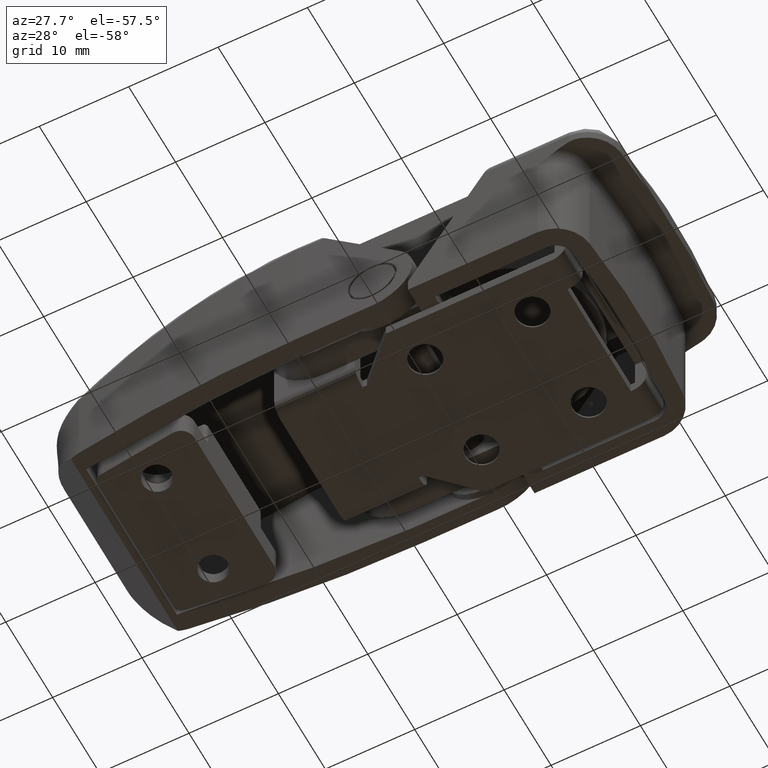
[diagram: clean part render]
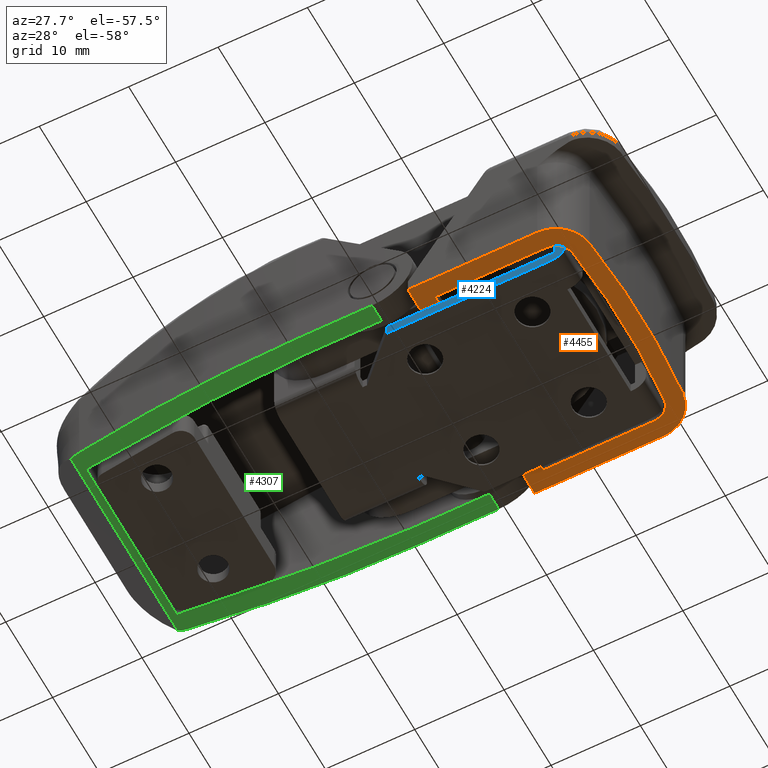
[diagram: same view with three faces highlighted in distinct colors, each labeled with its STEP entity id]
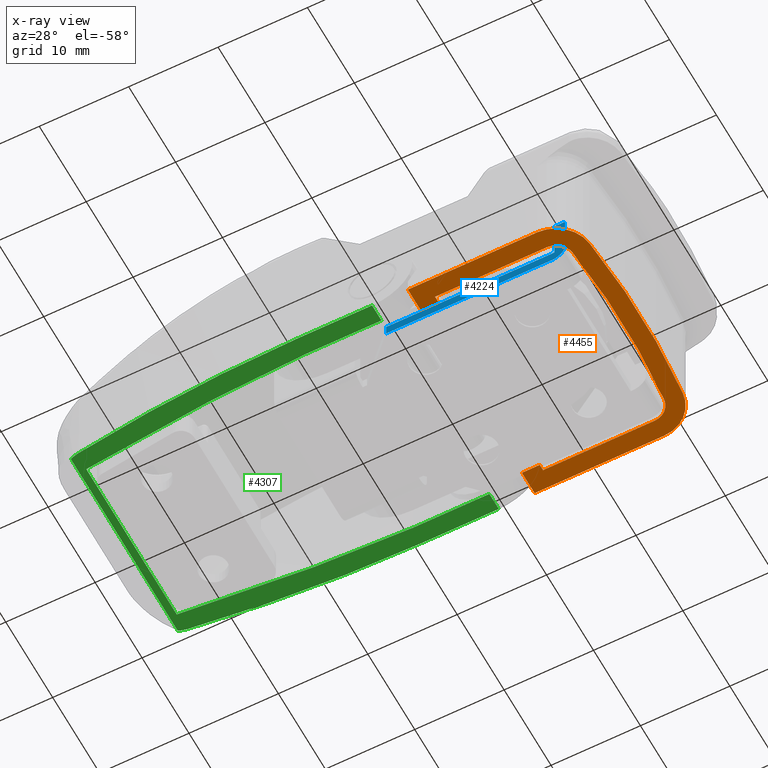
[diagram: x-ray of the same camera — body ghosted, the three highlighted faces saturated]
A machine part, auxiliary view with three faces highlighted in distinct colors.
The next image is the same camera in x-ray (body ghosted, the three faces saturated) — at least one of them is partly hidden behind the body in this view.
Their STEP definitions:

[orange] entity #4455 — the highlighted planar face has unit normal (-0, -0, -1).
#395=PLANE('',#4896);
#644=FACE_OUTER_BOUND('',#961,.T.);
#961=EDGE_LOOP('',(#4060,#4061,#4062,#4063,#4064,#4065,#4066,#4067,#4068,
#4069,#4070,#4071,#4072,#4073,#4074,#4075));
#1235=LINE('',#8911,#1566);
#1269=LINE('',#8996,#1600);
#1274=LINE('',#9006,#1605);
#1280=LINE('',#9017,#1611);
#1281=LINE('',#9019,#1612);
#1282=LINE('',#9022,#1613);
#1287=LINE('',#9038,#1618);
#1289=LINE('',#9041,#1620);
#1306=LINE('',#9285,#1637);
#1307=LINE('',#9290,#1638);
#1566=VECTOR('',#5862,0.700000000000001);
#1600=VECTOR('',#5946,2.7);
#1605=VECTOR('',#5953,2.7);
#1611=VECTOR('',#5963,2.);
#1612=VECTOR('',#5966,2.00000000000001);
#1613=VECTOR('',#5969,12.4834991547897);
#1618=VECTOR('',#5988,12.4834991547897);
#1620=VECTOR('',#5992,0.700000000000001);
#1637=VECTOR('',#6091,14.4834991547897);
#1638=VECTOR('',#6096,14.4834991547897);
#1807=CIRCLE('',#4849,2.);
#1808=CIRCLE('',#4851,89.6249999999999);
#1809=CIRCLE('',#4853,2.);
#1827=CIRCLE('',#4895,4.);
#1828=CIRCLE('',#4897,91.6249999999999);
#1829=CIRCLE('',#4898,4.);
#2172=VERTEX_POINT('',#8908);
#2173=VERTEX_POINT('',#8910);
#2198=VERTEX_POINT('',#8993);
#2199=VERTEX_POINT('',#8995);
#2202=VERTEX_POINT('',#9003);
#2203=VERTEX_POINT('',#9005);
#2206=VERTEX_POINT('',#9015);
#2207=VERTEX_POINT('',#9021);
#2208=VERTEX_POINT('',#9025);
#2209=VERTEX_POINT('',#9029);
#2210=VERTEX_POINT('',#9033);
#2211=VERTEX_POINT('',#9037);
#2242=VERTEX_POINT('',#9279);
#2243=VERTEX_POINT('',#9281);
#2244=VERTEX_POINT('',#9286);
#2245=VERTEX_POINT('',#9288);
#2746=EDGE_CURVE('',#2173,#2172,#1235,.T.);
#2788=EDGE_CURVE('',#2198,#2199,#1269,.T.);
#2793=EDGE_CURVE('',#2202,#2203,#1274,.T.);
#2799=EDGE_CURVE('',#2202,#2206,#1280,.T.);
#2800=EDGE_CURVE('',#2172,#2199,#1281,.T.);
#2801=EDGE_CURVE('',#2207,#2173,#1282,.T.);
#2803=EDGE_CURVE('',#2208,#2207,#1807,.T.);
#2805=EDGE_CURVE('',#2209,#2208,#1808,.T.);
#2807=EDGE_CURVE('',#2210,#2209,#1809,.T.);
#2809=EDGE_CURVE('',#2211,#2210,#1287,.T.);
#2811=EDGE_CURVE('',#2206,#2211,#1289,.T.);
#2861=EDGE_CURVE('',#2242,#2243,#1827,.T.);
#2863=EDGE_CURVE('',#2198,#2243,#1306,.T.);
#2864=EDGE_CURVE('',#2242,#2244,#1828,.T.);
#2865=EDGE_CURVE('',#2245,#2244,#1829,.T.);
#2866=EDGE_CURVE('',#2245,#2203,#1307,.T.);
#4060=ORIENTED_EDGE('',*,*,#2800,.T.);
#4061=ORIENTED_EDGE('',*,*,#2788,.F.);
#4062=ORIENTED_EDGE('',*,*,#2863,.T.);
#4063=ORIENTED_EDGE('',*,*,#2861,.F.);
#4064=ORIENTED_EDGE('',*,*,#2864,.T.);
#4065=ORIENTED_EDGE('',*,*,#2865,.F.);
#4066=ORIENTED_EDGE('',*,*,#2866,.T.);
#4067=ORIENTED_EDGE('',*,*,#2793,.F.);
#4068=ORIENTED_EDGE('',*,*,#2799,.T.);
#4069=ORIENTED_EDGE('',*,*,#2811,.T.);
#4070=ORIENTED_EDGE('',*,*,#2809,.T.);
#4071=ORIENTED_EDGE('',*,*,#2807,.T.);
#4072=ORIENTED_EDGE('',*,*,#2805,.T.);
#4073=ORIENTED_EDGE('',*,*,#2803,.T.);
#4074=ORIENTED_EDGE('',*,*,#2801,.T.);
#4075=ORIENTED_EDGE('',*,*,#2746,.T.);
#4455=ADVANCED_FACE('',(#644),#395,.T.);
#4849=AXIS2_PLACEMENT_3D('',#9026,#5973,#5974);
#4851=AXIS2_PLACEMENT_3D('',#9030,#5978,#5979);
#4853=AXIS2_PLACEMENT_3D('',#9034,#5983,#5984);
#4895=AXIS2_PLACEMENT_3D('',#9282,#6086,#6087);
#4896=AXIS2_PLACEMENT_3D('',#9284,#6089,#6090);
#4897=AXIS2_PLACEMENT_3D('',#9287,#6092,#6093);
#4898=AXIS2_PLACEMENT_3D('',#9289,#6094,#6095);
#5862=DIRECTION('',(0.,0.,1.));
#5946=DIRECTION('',(0.,0.,1.));
#5953=DIRECTION('',(0.,0.,1.));
#5963=DIRECTION('',(1.,1.1686558153949E-16,0.));
#5966=DIRECTION('',(-1.,-1.1686558153949E-16,-5.55111512312577E-16));
#5969=DIRECTION('',(-1.,-1.1686558153949E-16,-1.33402863755454E-16));
#5973=DIRECTION('center_axis',(-1.1686558153949E-16,1.,0.));
#5974=DIRECTION('ref_axis',(0.,0.,-1.));
#5978=DIRECTION('center_axis',(-1.1686558153949E-16,1.,0.));
#5979=DIRECTION('ref_axis',(0.994105553834975,1.16176723660561E-16,-0.108416547788873));
#5983=DIRECTION('center_axis',(-1.1686558153949E-16,1.,0.));
#5984=DIRECTION('ref_axis',(0.994105553834975,1.16176723660561E-16,0.108416547788875));
#5988=DIRECTION('',(1.,1.1686558153949E-16,3.55740970014543E-16));
#5992=DIRECTION('',(-3.96508223080416E-16,-4.63381640754828E-32,1.));
#6086=DIRECTION('center_axis',(-1.1686558153949E-16,1.,0.));
#6087=DIRECTION('ref_axis',(0.667676363297041,7.80283864768805E-17,-0.744451659877549));
#6089=DIRECTION('center_axis',(1.1686558153949E-16,-1.,0.));
#6090=DIRECTION('ref_axis',(0.,0.,-1.));
#6091=DIRECTION('',(1.,1.1686558153949E-16,0.));
#6092=DIRECTION('center_axis',(1.1686558153949E-16,-1.,0.));
#6093=DIRECTION('ref_axis',(-0.989085948158254,-1.15590104524052E-16,0.147339699863574));
#6094=DIRECTION('center_axis',(-1.1686558153949E-16,1.,0.));
#6095=DIRECTION('ref_axis',(0.667676363297039,7.80283864768803E-17,0.744451659877551));
#6096=DIRECTION('',(-1.,-1.1686558153949E-16,0.));
#8908=CARTESIAN_POINT('',(-2.99999999999999,2.33731163078981E-16,-10.8));
#8910=CARTESIAN_POINT('',(-2.99999999999999,2.33731163078981E-16,-11.5));
#8911=CARTESIAN_POINT('',(-2.99999999999999,2.33731163078981E-16,-5.4));
#8993=CARTESIAN_POINT('',(-5.,0.,-13.5));
#8995=CARTESIAN_POINT('',(-5.,-2.46519032881566E-31,-10.8));
#8996=CARTESIAN_POINT('',(-5.,0.,0.));
#9003=CARTESIAN_POINT('',(-5.,-2.46519032881566E-31,10.8));
#9005=CARTESIAN_POINT('',(-5.,0.,13.5));
#9006=CARTESIAN_POINT('',(-5.,0.,0.));
#9015=CARTESIAN_POINT('',(-3.,2.3373116307898E-16,10.8));
#9017=CARTESIAN_POINT('',(5.5,1.22708860616465E-15,10.8));
#9019=CARTESIAN_POINT('',(4.5,1.11022302462516E-15,-10.8));
#9021=CARTESIAN_POINT('',(9.48349915478972,1.69262255145121E-15,-11.5));
#9022=CARTESIAN_POINT('',(5.5,1.22708860616465E-15,-11.5));
#9025=CARTESIAN_POINT('',(11.4717102624596,1.92497599877233E-15,-9.71683309557775));
#9026=CARTESIAN_POINT('Origin',(9.48349915478972,2.22044604925031E-15,-9.50000000000001));
#9029=CARTESIAN_POINT('',(11.4717102624596,1.92497599877233E-15,9.71683309557774));
#9030=CARTESIAN_POINT('Origin',(-77.6249999999999,2.22044604925031E-15,
0.));
#9033=CARTESIAN_POINT('',(9.48349915478974,1.69262255145122E-15,11.5));
#9034=CARTESIAN_POINT('Origin',(9.48349915478974,2.22044604925031E-15,9.5));
#9037=CARTESIAN_POINT('',(-3.,2.3373116307898E-16,11.5));
#9038=CARTESIAN_POINT('',(11.7417495773949,1.95653430035076E-15,11.5));
#9041=CARTESIAN_POINT('',(-3.,2.3373116307898E-16,5.74999999999999));
#9279=CARTESIAN_POINT('',(13.4599213701296,3.31357172260418E-15,-9.9336661911555));
#9281=CARTESIAN_POINT('',(9.48349915478972,1.69262255145122E-15,-13.5));
#9282=CARTESIAN_POINT('Origin',(9.48349915478972,1.74961757703516E-15,-9.50000000000001));
#9284=CARTESIAN_POINT('Origin',(14.,2.22044604925031E-15,0.));
#9285=CARTESIAN_POINT('',(-5.,0.,-13.5));
#9286=CARTESIAN_POINT('',(13.4599213701296,3.31357172260418E-15,9.93366619115548));
#9287=CARTESIAN_POINT('Origin',(-77.6249999999999,-7.33112058279474E-15,
0.));
#9288=CARTESIAN_POINT('',(9.48349915478974,1.69262255145122E-15,13.5));
#9289=CARTESIAN_POINT('Origin',(9.48349915478974,1.74961757703516E-15,9.49999999999999));
#9290=CARTESIAN_POINT('',(-5.,0.,13.5));

[blue] entity #4224 — the highlighted planar face has unit normal (0, -1, 0).
#294=PLANE('',#4504);
#413=FACE_OUTER_BOUND('',#678,.T.);
#678=EDGE_LOOP('',(#2966,#2967,#2968,#2969,#2970,#2971,#2972));
#992=LINE('',#6177,#1323);
#993=LINE('',#6181,#1324);
#1017=LINE('',#6233,#1348);
#1019=LINE('',#6246,#1350);
#1033=LINE('',#6285,#1364);
#1034=LINE('',#6286,#1365);
#1323=VECTOR('',#4945,4.8);
#1324=VECTOR('',#4950,1.2);
#1348=VECTOR('',#4990,18.8);
#1350=VECTOR('',#5002,18.5);
#1364=VECTOR('',#5034,1.2);
#1365=VECTOR('',#5035,4.5);
#1657=CIRCLE('',#4501,1.5);
#1844=VERTEX_POINT('',#6174);
#1845=VERTEX_POINT('',#6176);
#1846=VERTEX_POINT('',#6180);
#1866=VERTEX_POINT('',#6231);
#1871=VERTEX_POINT('',#6243);
#1872=VERTEX_POINT('',#6245);
#1887=VERTEX_POINT('',#6277);
#2262=EDGE_CURVE('',#1845,#1844,#992,.T.);
#2264=EDGE_CURVE('',#1845,#1846,#993,.T.);
#2291=EDGE_CURVE('',#1844,#1866,#1017,.T.);
#2297=EDGE_CURVE('',#1871,#1872,#1019,.T.);
#2314=EDGE_CURVE('',#1887,#1871,#1657,.T.);
#2317=EDGE_CURVE('',#1872,#1866,#1033,.T.);
#2318=EDGE_CURVE('',#1887,#1846,#1034,.T.);
#2966=ORIENTED_EDGE('',*,*,#2264,.F.);
#2967=ORIENTED_EDGE('',*,*,#2262,.T.);
#2968=ORIENTED_EDGE('',*,*,#2291,.T.);
#2969=ORIENTED_EDGE('',*,*,#2317,.F.);
#2970=ORIENTED_EDGE('',*,*,#2297,.F.);
#2971=ORIENTED_EDGE('',*,*,#2314,.F.);
#2972=ORIENTED_EDGE('',*,*,#2318,.T.);
#4224=ADVANCED_FACE('',(#413),#294,.T.);
#4501=AXIS2_PLACEMENT_3D('',#6279,#5025,#5026);
#4504=AXIS2_PLACEMENT_3D('',#6284,#5032,#5033);
#4945=DIRECTION('',(0.,0.,-1.));
#4950=DIRECTION('',(1.,2.22044604925031E-16,-9.25185853854296E-16));
#4990=DIRECTION('',(-1.,-2.22044604925031E-16,0.));
#5002=DIRECTION('',(-1.,-2.22044604925031E-16,0.));
#5025=DIRECTION('center_axis',(-2.22044604925031E-16,1.,0.));
#5026=DIRECTION('ref_axis',(0.707106781186546,1.57009245868377E-16,-0.707106781186549));
#5032=DIRECTION('center_axis',(2.22044604925031E-16,-1.,0.));
#5033=DIRECTION('ref_axis',(0.,0.,-1.));
#5034=DIRECTION('',(0.,0.,1.));
#5035=DIRECTION('',(0.,0.,1.));
#6174=CARTESIAN_POINT('',(28.3,-10.5,1.2));
#6176=CARTESIAN_POINT('',(28.3,-10.5,6.));
#6177=CARTESIAN_POINT('',(28.3,-10.5,7.));
#6180=CARTESIAN_POINT('',(29.5,-10.5,6.));
#6181=CARTESIAN_POINT('',(29.5,-10.5,6.));
#6231=CARTESIAN_POINT('',(9.49999999999999,-10.5,1.2));
#6233=CARTESIAN_POINT('',(29.5,-10.5,1.2));
#6243=CARTESIAN_POINT('',(28.,-10.5,0.));
#6245=CARTESIAN_POINT('',(9.49999999999999,-10.5,0.));
#6246=CARTESIAN_POINT('',(29.5,-10.5,0.));
#6277=CARTESIAN_POINT('',(29.5,-10.5,1.5));
#6279=CARTESIAN_POINT('Origin',(28.,-10.5,1.5));
#6284=CARTESIAN_POINT('Origin',(29.5,-10.5,0.));
#6285=CARTESIAN_POINT('',(9.49999999999999,-10.5,0.));
#6286=CARTESIAN_POINT('',(29.5,-10.5,0.));

[green] entity #4307 — the highlighted planar face has unit normal (0, -0, -1).
#123=B_SPLINE_CURVE_WITH_KNOTS('',3,(#7986,#7987,#7988,#7989),
 .UNSPECIFIED.,.F.,.F.,(4,4),(-1.,0.),.UNSPECIFIED.);
#124=B_SPLINE_CURVE_WITH_KNOTS('',3,(#7990,#7991,#7992,#7993),
 .UNSPECIFIED.,.F.,.F.,(4,4),(0.,1.),.UNSPECIFIED.);
#326=PLANE('',#4631);
#496=FACE_OUTER_BOUND('',#780,.T.);
#780=EDGE_LOOP('',(#3350,#3351,#3352,#3353,#3354,#3355,#3356,#3357,#3358,
#3359,#3360,#3361,#3362,#3363));
#1069=LINE('',#7734,#1400);
#1075=LINE('',#7788,#1406);
#1084=LINE('',#7823,#1415);
#1102=LINE('',#7979,#1433);
#1104=LINE('',#7983,#1435);
#1105=LINE('',#7985,#1436);
#1106=LINE('',#7995,#1437);
#1107=LINE('',#7996,#1438);
#1400=VECTOR('',#5252,8.49999999999998);
#1406=VECTOR('',#5272,22.7864321732208);
#1415=VECTOR('',#5301,19.270811686426);
#1433=VECTOR('',#5355,8.49999999999996);
#1435=VECTOR('',#5359,2.);
#1436=VECTOR('',#5360,8.49999999999996);
#1437=VECTOR('',#5361,2.);
#1438=VECTOR('',#5362,8.49999999999998);
#1699=CIRCLE('',#4583,5.);
#1701=CIRCLE('',#4587,5.);
#1705=CIRCLE('',#4593,175.299999999999);
#1711=CIRCLE('',#4605,175.3);
#1961=VERTEX_POINT('',#7573);
#1963=VERTEX_POINT('',#7577);
#1965=VERTEX_POINT('',#7640);
#1966=VERTEX_POINT('',#7641);
#1971=VERTEX_POINT('',#7726);
#1973=VERTEX_POINT('',#7732);
#1979=VERTEX_POINT('',#7792);
#1987=VERTEX_POINT('',#7820);
#1988=VERTEX_POINT('',#7822);
#2009=VERTEX_POINT('',#7976);
#2010=VERTEX_POINT('',#7978);
#2011=VERTEX_POINT('',#7982);
#2012=VERTEX_POINT('',#7984);
#2013=VERTEX_POINT('',#7994);
#2430=EDGE_CURVE('',#1963,#1961,#1699,.T.);
#2434=EDGE_CURVE('',#1965,#1966,#1701,.T.);
#2444=EDGE_CURVE('',#1963,#1971,#1705,.T.);
#2447=EDGE_CURVE('',#1971,#1973,#1069,.T.);
#2457=EDGE_CURVE('',#1965,#1961,#1075,.T.);
#2459=EDGE_CURVE('',#1979,#1966,#1711,.T.);
#2471=EDGE_CURVE('',#1988,#1987,#1084,.T.);
#2504=EDGE_CURVE('',#2010,#2009,#1102,.T.);
#2506=EDGE_CURVE('',#1973,#2011,#1104,.T.);
#2507=EDGE_CURVE('',#2011,#2012,#1105,.T.);
#2508=EDGE_CURVE('',#2012,#1988,#123,.T.);
#2509=EDGE_CURVE('',#1987,#2010,#124,.T.);
#2510=EDGE_CURVE('',#2009,#2013,#1106,.T.);
#2511=EDGE_CURVE('',#2013,#1979,#1107,.T.);
#3350=ORIENTED_EDGE('',*,*,#2430,.F.);
#3351=ORIENTED_EDGE('',*,*,#2444,.T.);
#3352=ORIENTED_EDGE('',*,*,#2447,.T.);
#3353=ORIENTED_EDGE('',*,*,#2506,.T.);
#3354=ORIENTED_EDGE('',*,*,#2507,.T.);
#3355=ORIENTED_EDGE('',*,*,#2508,.T.);
#3356=ORIENTED_EDGE('',*,*,#2471,.T.);
#3357=ORIENTED_EDGE('',*,*,#2509,.T.);
#3358=ORIENTED_EDGE('',*,*,#2504,.T.);
#3359=ORIENTED_EDGE('',*,*,#2510,.T.);
#3360=ORIENTED_EDGE('',*,*,#2511,.T.);
#3361=ORIENTED_EDGE('',*,*,#2459,.T.);
#3362=ORIENTED_EDGE('',*,*,#2434,.F.);
#3363=ORIENTED_EDGE('',*,*,#2457,.T.);
#4307=ADVANCED_FACE('',(#496),#326,.T.);
#4583=AXIS2_PLACEMENT_3D('',#7579,#5222,#5223);
#4587=AXIS2_PLACEMENT_3D('',#7642,#5230,#5231);
#4593=AXIS2_PLACEMENT_3D('',#7728,#5245,#5246);
#4605=AXIS2_PLACEMENT_3D('',#7793,#5278,#5279);
#4631=AXIS2_PLACEMENT_3D('',#7981,#5357,#5358);
#5222=DIRECTION('center_axis',(-1.1686558153949E-16,1.,0.));
#5223=DIRECTION('ref_axis',(-0.756261783319098,-8.83809731036781E-17,-0.654269145758088));
#5230=DIRECTION('center_axis',(-1.1686558153949E-16,1.,0.));
#5231=DIRECTION('ref_axis',(-0.756261783319101,-8.83809731036785E-17,0.654269145758085));
#5245=DIRECTION('center_axis',(1.1686558153949E-16,-1.,0.));
#5246=DIRECTION('ref_axis',(0.,0.,1.));
#5252=DIRECTION('',(1.,1.1686558153949E-16,0.));
#5272=DIRECTION('',(0.,0.,-1.));
#5278=DIRECTION('center_axis',(1.1686558153949E-16,-1.,0.));
#5279=DIRECTION('ref_axis',(0.168282943525385,1.96664840582713E-17,-0.985738733599544));
#5301=DIRECTION('',(-3.09315533174417E-17,-3.61483396636257E-33,1.));
#5355=DIRECTION('',(1.,1.1686558153949E-16,3.02468059712863E-16));
#5357=DIRECTION('center_axis',(1.1686558153949E-16,-1.,0.));
#5358=DIRECTION('ref_axis',(0.,0.,-1.));
#5359=DIRECTION('',(0.,0.,1.));
#5360=DIRECTION('',(-1.,-1.1686558153949E-16,3.02468059712863E-16));
#5361=DIRECTION('',(0.,0.,1.));
#5362=DIRECTION('',(-1.,-1.1686558153949E-16,0.));
#7573=CARTESIAN_POINT('',(-34.8,-4.5,-11.3932160866104));
#7577=CARTESIAN_POINT('',(-33.7193188490899,-4.50000000000001,-11.6764420801508));
#7579=CARTESIAN_POINT('Origin',(-33.,-4.50000000000001,-6.72845457073411));
#7640=CARTESIAN_POINT('',(-34.8,-4.5,11.3932160866104));
#7641=CARTESIAN_POINT('',(-33.7193188490899,-4.50000000000001,11.6764420801509));
#7642=CARTESIAN_POINT('Origin',(-33.,-4.50000000000001,6.72845457073414));
#7726=CARTESIAN_POINT('',(-8.49999999999998,-4.5,-13.5));
#7728=CARTESIAN_POINT('Origin',(-8.49999999999998,-4.5,161.799999999999));
#7732=CARTESIAN_POINT('',(5.51091059616309E-16,-4.5,-13.5));
#7734=CARTESIAN_POINT('',(5.51091059616309E-16,-4.5,-13.5));
#7788=CARTESIAN_POINT('',(-34.8,-4.5,0.));
#7792=CARTESIAN_POINT('',(-8.49999999999998,-4.5,13.5));
#7793=CARTESIAN_POINT('Origin',(-8.49999999999998,-4.5,-161.8));
#7820=CARTESIAN_POINT('',(-34.,-4.50000000000001,9.63540584321301));
#7822=CARTESIAN_POINT('',(-34.,-4.5,-9.63540584321296));
#7823=CARTESIAN_POINT('',(-34.,-4.5,1.59209079966453E-7));
#7976=CARTESIAN_POINT('',(1.11022302462516E-15,-4.5,11.5));
#7978=CARTESIAN_POINT('',(-8.49999999999996,-4.50000000000002,11.5));
#7979=CARTESIAN_POINT('',(-2.44903950399174,-4.5,11.5));
#7981=CARTESIAN_POINT('Origin',(5.51091059616309E-16,-4.5,0.));
#7982=CARTESIAN_POINT('',(1.11022302462516E-15,-4.5,-11.5));
#7983=CARTESIAN_POINT('',(5.51091059616309E-16,-4.5,0.));
#7984=CARTESIAN_POINT('',(-8.49999999999996,-4.5,-11.5000000230729));
#7985=CARTESIAN_POINT('',(-2.44903950399174,-4.5,-11.5));
#7986=CARTESIAN_POINT('Ctrl Pts',(-8.49999999999996,-4.50000000000001,-11.500000045583));
#7987=CARTESIAN_POINT('Ctrl Pts',(-11.8333333333333,-4.50000000000001,-11.500000045583));
#7988=CARTESIAN_POINT('Ctrl Pts',(-25.5,-4.50000000000001,-10.878468644793));
#7989=CARTESIAN_POINT('Ctrl Pts',(-34.,-4.5,-9.63540584321296));
#7990=CARTESIAN_POINT('Ctrl Pts',(-34.,-4.50000000000001,9.635405843213));
#7991=CARTESIAN_POINT('Ctrl Pts',(-25.5,-4.50000000000002,10.8784686144043));
#7992=CARTESIAN_POINT('Ctrl Pts',(-11.8333333333333,-4.5,11.5));
#7993=CARTESIAN_POINT('Ctrl Pts',(-8.49999999999996,-4.5,11.5));
#7994=CARTESIAN_POINT('',(5.51091059616309E-16,-4.5,13.5));
#7995=CARTESIAN_POINT('',(5.51091059616309E-16,-4.5,0.));
#7996=CARTESIAN_POINT('',(5.51091059616309E-16,-4.5,13.5));